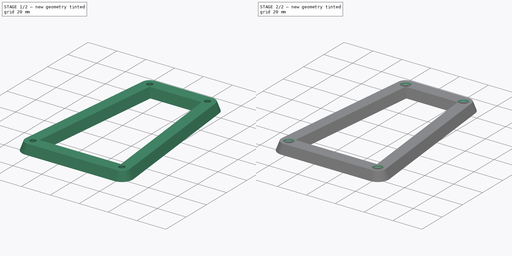
[diagram: build sequence overview — one tinted view per stage of 2, left to right]
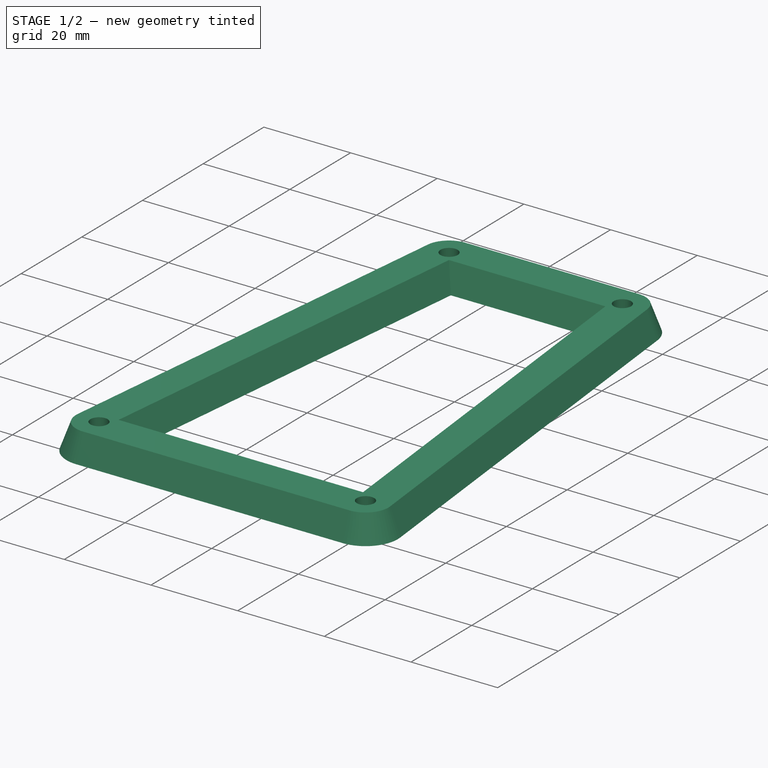
[diagram: stage 1 of 2 — iso view after this stage's code; geometry added in this stage tinted green]
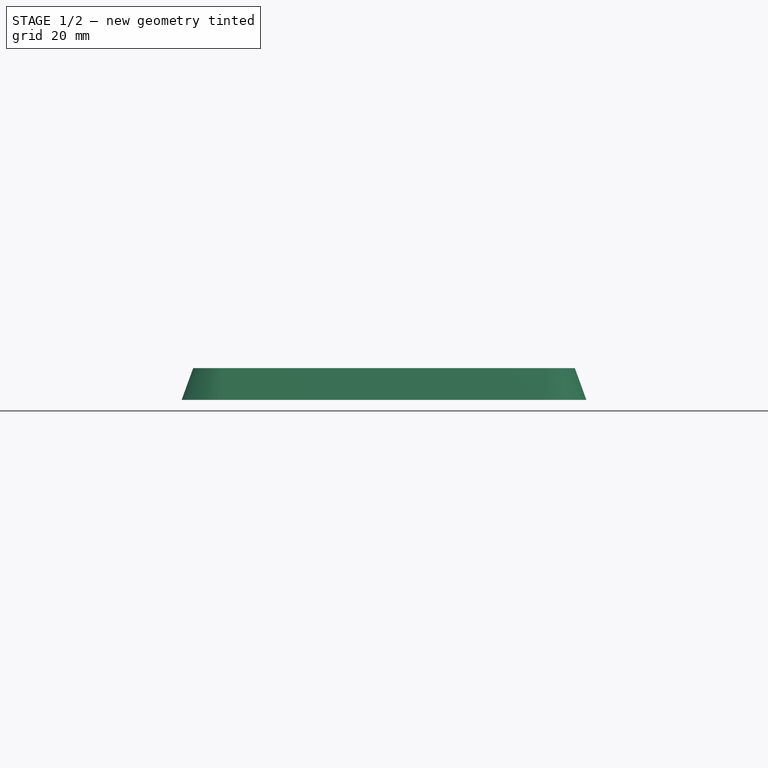
[diagram: stage 1 of 2 — front view after this stage's code; geometry added in this stage tinted green]
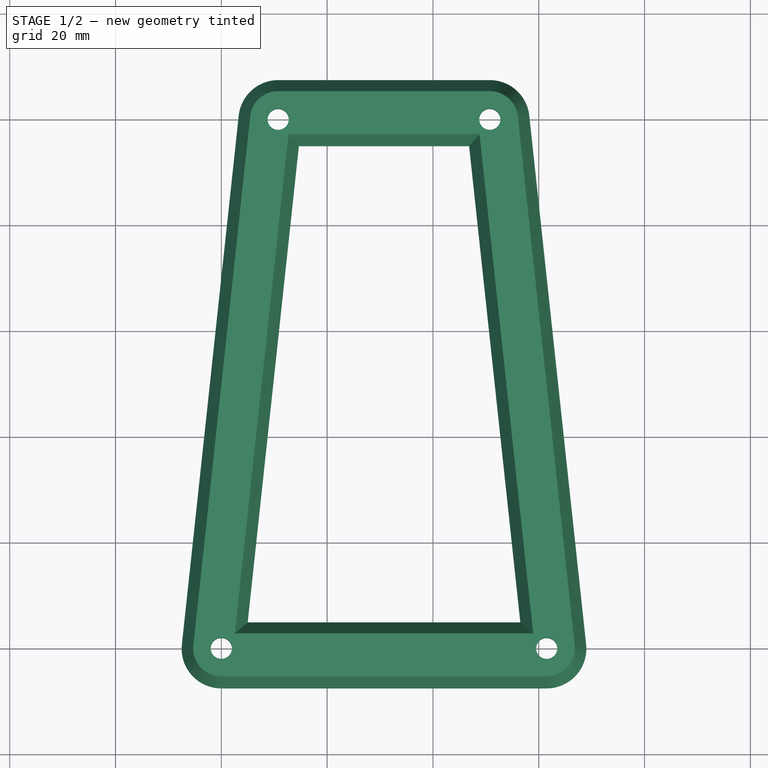
[diagram: stage 1 of 2 — top view after this stage's code; geometry added in this stage tinted green]
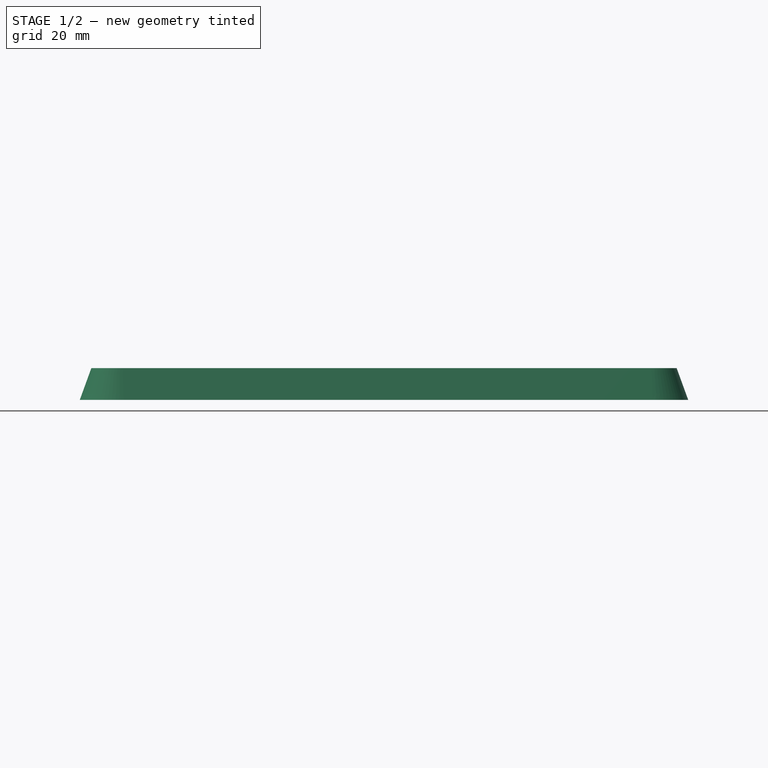
[diagram: stage 1 of 2 — right view after this stage's code; geometry added in this stage tinted green]
FCSTD DOCUMENT  (FreeCAD 0.17R11141 (Git))
Label: LED-remote-bezel-inside
License: All rights reserved
LicenseURL: http://en.wikipedia.org/wiki/All_rights_reserved
objects: Sketcher::SketchObject×1, PartDesign::Pad×1, PartDesign::Draft×1, PartDesign::Chamfer×1, PartDesign::Body×1
note: 6 computed .brp shape members not serialized (recipe doc carries the construction recipe); baked Part::Feature solids carry a one-line shape summary decoded from their .brp

FEATURE [Sketcher::SketchObject] Sketch
  MapMode = 5
  Support = -> [XY_Plane]
  sketch-geometry (22):
    g0: LineSegment [constr] StartX=0 StartY=0 StartZ=0 EndX=61.5 EndY=0 EndZ=0
    g1: LineSegment [constr] StartX=61.5 StartY=0 StartZ=0 EndX=50.75 EndY=100 EndZ=0
    g2: LineSegment [constr] StartX=50.75 StartY=100 StartZ=0 EndX=10.75 EndY=100 EndZ=0
    g3: LineSegment [constr] StartX=10.75 StartY=100 StartZ=0 EndX=0 EndY=0 EndZ=0
    g4: Circle CenterX=10.75 CenterY=100 CenterZ=0 NormalX=0 NormalY=0 NormalZ=1 Radius=2
    g5: Circle CenterX=50.75 CenterY=100 CenterZ=0 NormalX=0 NormalY=0 NormalZ=1 Radius=2
    g6: Circle CenterX=61.5 CenterY=0 CenterZ=0 NormalX=0 NormalY=0 NormalZ=1 Radius=2
    g7: Circle CenterX=0 CenterY=0 CenterZ=0 NormalX=0 NormalY=0 NormalZ=1 Radius=2
    g8: ArcOfCircle CenterX=50.75 CenterY=100 CenterZ=0 NormalX=0 NormalY=0 NormalZ=1 Radius=7.5 StartAngle=0.107088 EndAngle=1.5708
    g9: ArcOfCircle CenterX=61.5 CenterY=0 CenterZ=0 NormalX=0 NormalY=0 NormalZ=1 Radius=7.5 StartAngle=4.71239 EndAngle=6.39027
    g10: ArcOfCircle CenterX=0 CenterY=0 CenterZ=0 NormalX=0 NormalY=0 NormalZ=1 Radius=7.5 StartAngle=3.0345 EndAngle=4.71239
    g11: ArcOfCircle CenterX=10.75 CenterY=100 CenterZ=0 NormalX=0 NormalY=0 NormalZ=1 Radius=7.5 StartAngle=1.5708 EndAngle=3.0345
    g12: LineSegment StartX=3.29296 StartY=100.802 StartZ=0 EndX=-7.45704 EndY=0.801632 EndZ=0
    g13: LineSegment StartX=-5.6888e-08 StartY=-7.5 StartZ=0 EndX=61.5 EndY=-7.5 EndZ=0
    g14: LineSegment StartX=68.957 StartY=0.801632 StartZ=0 EndX=58.207 EndY=100.802 EndZ=0
    g15: LineSegment StartX=50.75 StartY=107.5 StartZ=0 EndX=10.75 EndY=107.5 EndZ=0
    g16: LineSegment StartX=4.98618 StartY=5 StartZ=0 EndX=14.6612 EndY=95 EndZ=0
    g17: LineSegment StartX=14.6612 StartY=95 StartZ=0 EndX=46.8388 EndY=95 EndZ=0
    g18: LineSegment StartX=46.8388 StartY=95 StartZ=0 EndX=56.5138 EndY=5 EndZ=0
    g19: LineSegment StartX=56.5138 StartY=5 StartZ=0 EndX=4.98618 EndY=5 EndZ=0
    g20: LineSegment [constr] StartX=0 StartY=0 StartZ=0 EndX=4.98618 EndY=5 EndZ=0
    g21: LineSegment [constr] StartX=56.5138 StartY=5 StartZ=0 EndX=61.5 EndY=0 EndZ=0
  constraints (60):
    c: Coincident(g0,g1)
    c: Coincident(g1,g2)
    c: Coincident(g2,g3)
    c: Coincident(g3,g0)
    c: Horizontal(g0)
    c: Horizontal(g2)
    c: Coincident(g0,g-1)
    c: DistanceX(g0,g0) = 61.5
    c: Equal(g3,g1)
    c: DistanceX(g2,g2) = 40
    c: DistanceY(g3,g3) = 100
    c: Coincident(g4,g2)
    c: Coincident(g5,g1)
    c: Coincident(g6,g0)
    c: Coincident(g7,g-1)
    c: Equal(g5,g4)
    c: Equal(g4,g7)
    c: Equal(g7,g6)
    c: Radius(g4) = 2
    c: Coincident(g8,g1)
    c: Coincident(g9,g0)
    c: Coincident(g10,g-1)
    c: Coincident(g11,g2)
    c: Coincident(g12,g11)
    c: Coincident(g12,g10)
    c: Coincident(g13,g10)
    c: Coincident(g13,g9)
    c: Horizontal(g13)
    c: Coincident(g14,g9)
    c: Coincident(g14,g8)
    c: Coincident(g15,g8)
    c: Coincident(g15,g11)
    c: Horizontal(g15)
    c: Tangent(g15,g8)
    c: Tangent(g11,g15)
    c: Tangent(g11,g12)
    c: Tangent(g12,g10)
    c: Tangent(g10,g13)
    c: Tangent(g13,g9)
    c: Tangent(g14,g9)
    c: Tangent(g14,g8)
    c: Equal(g9,g10)
    c: Equal(g10,g11)
    c: Equal(g11,g8)
    c: Radius(g9) = 7.5
    c: Coincident(g16,g17)
    c: Horizontal(g17)
    c: Coincident(g17,g18)
    c: Coincident(g18,g19)
    c: Coincident(g19,g16)
    c: Horizontal(g19)
    c: Coincident(g-1,g20)
    c: Coincident(g20,g16)
    c: Coincident(g18,g21)
    c: Coincident(g21,g0)
    c: Equal(g21,g20)
    c: Equal(g18,g16)
    c: DistanceY(g16) = 5
    c: DistanceY(g16,g16) = 90
    c: Parallel(g18,g14)
FEATURE [PartDesign::Pad] Pad
  Length = 6
  Length2 = 100
  Profile = -> Sketch
  Type = 0
FEATURE [PartDesign::Draft] Draft
  Angle = 20
  Base = -> Pad [Face11,Face10,Face9,Face12,Face8]
  BaseFeature = -> Pad
  NeutralPlane = -> Pad [Face17]
  PullDirection = -> Pad [Edge17]
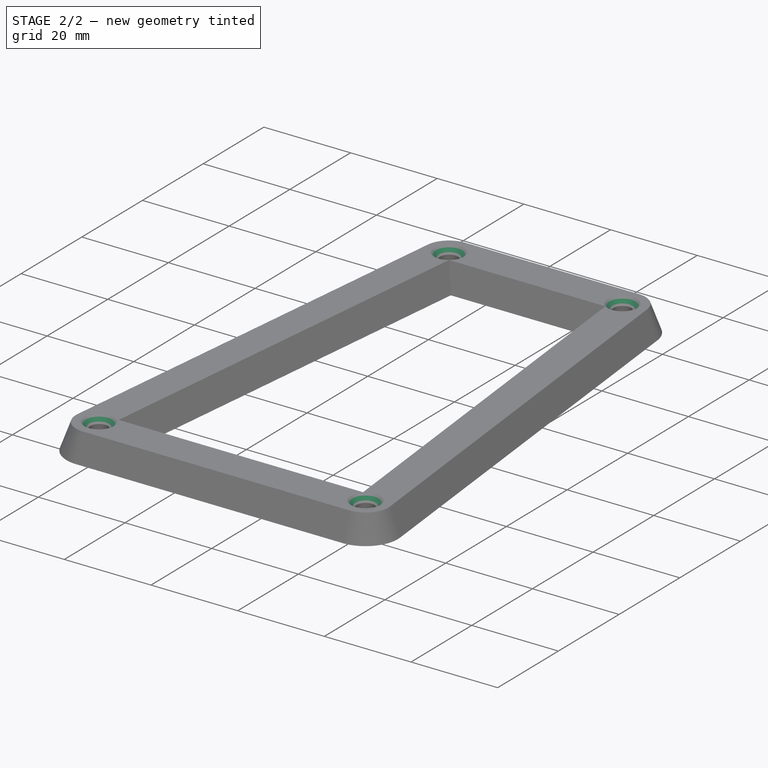
[diagram: stage 2 of 2 — iso view after this stage's code; geometry added in this stage tinted green]
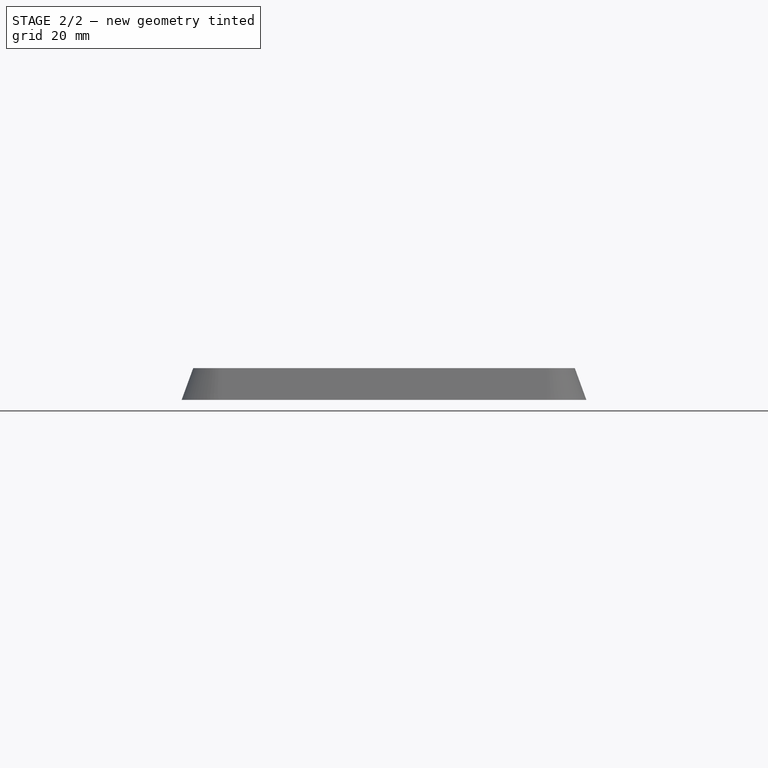
[diagram: stage 2 of 2 — front view after this stage's code; geometry added in this stage tinted green]
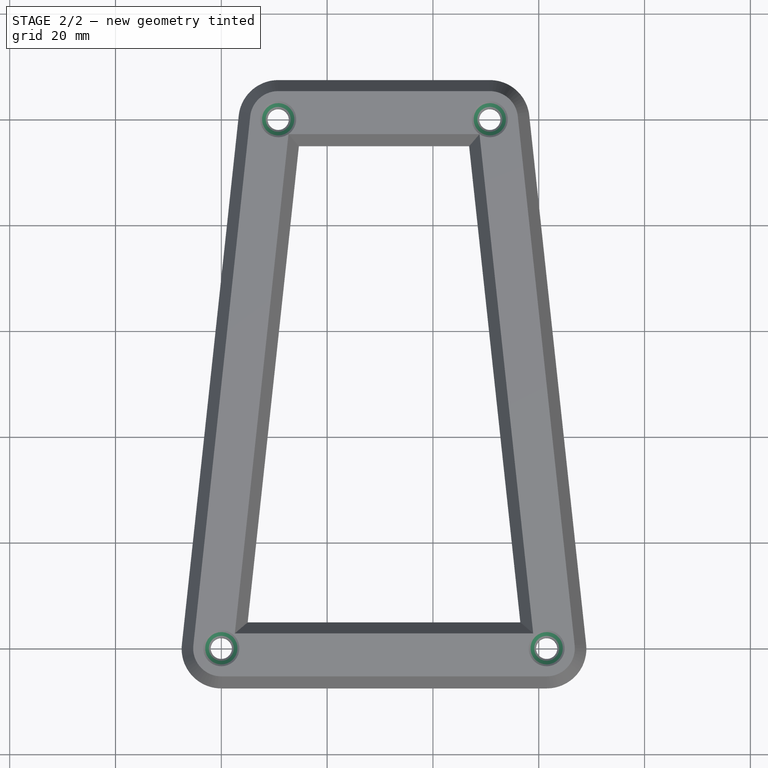
[diagram: stage 2 of 2 — top view after this stage's code; geometry added in this stage tinted green]
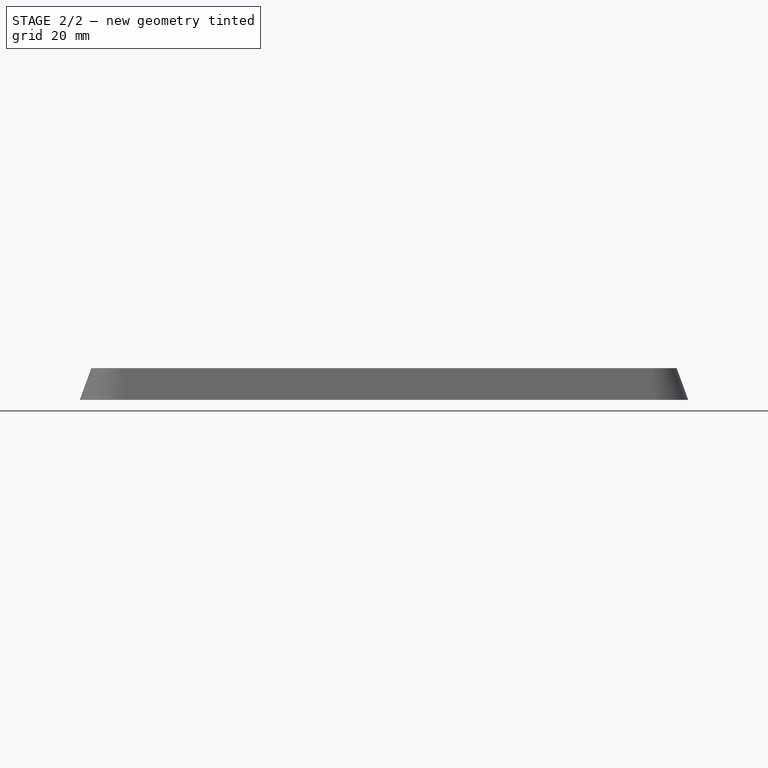
[diagram: stage 2 of 2 — right view after this stage's code; geometry added in this stage tinted green]
FEATURE [PartDesign::Chamfer] Chamfer
  Base = -> Draft [Edge39,Edge42,Edge48,Edge45]
  BaseFeature = -> Draft
  Size = 1.4
FEATURE [PartDesign::Body] Body
  Group = -> [Sketch,Pad,Draft,Chamfer]
  Origin = -> BodyOrigin
  Tip = -> Chamfer
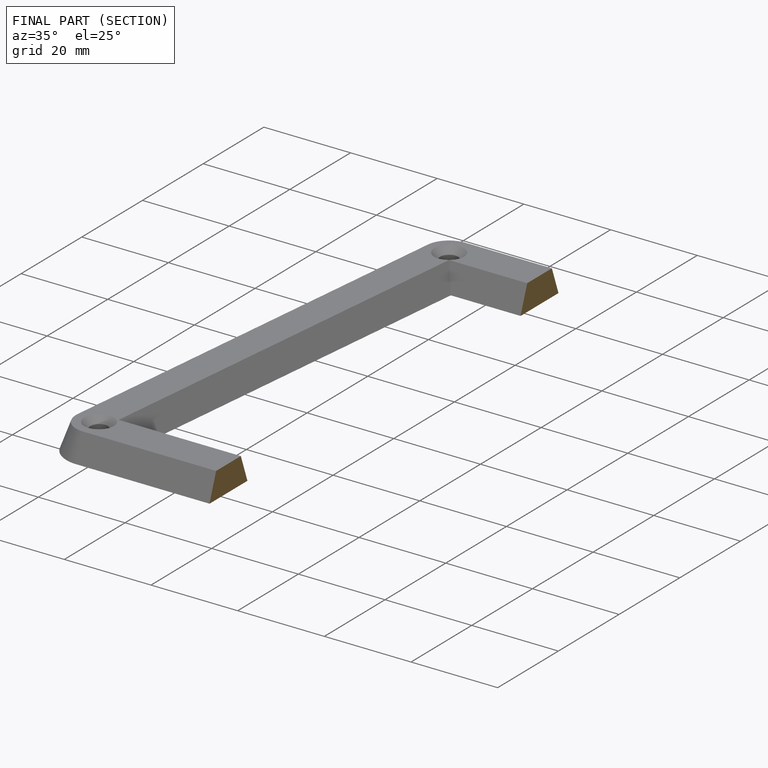
[diagram: finished part — half-section view (interior)]
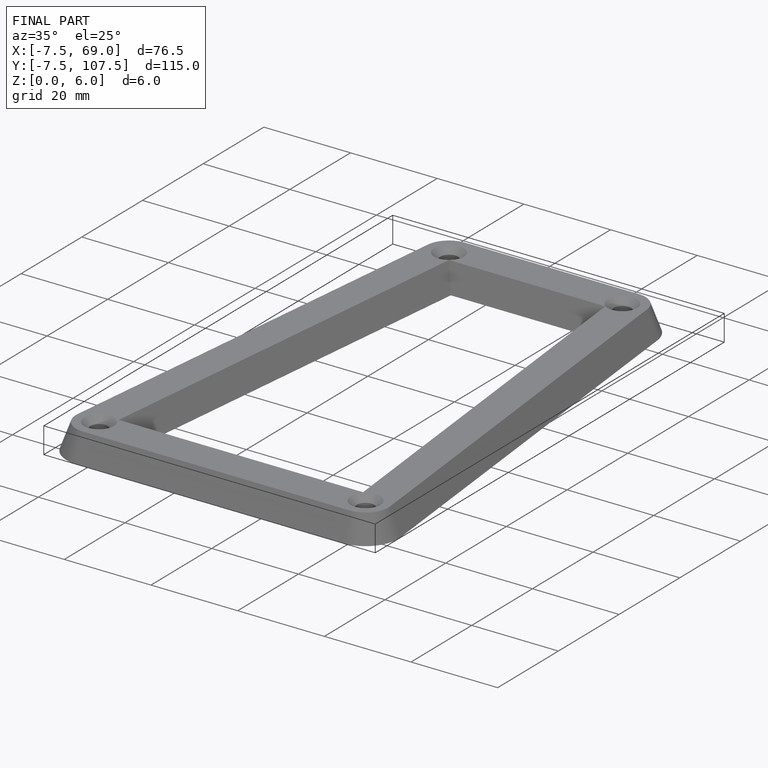
[diagram: finished part — iso view with bounding-box wireframe]
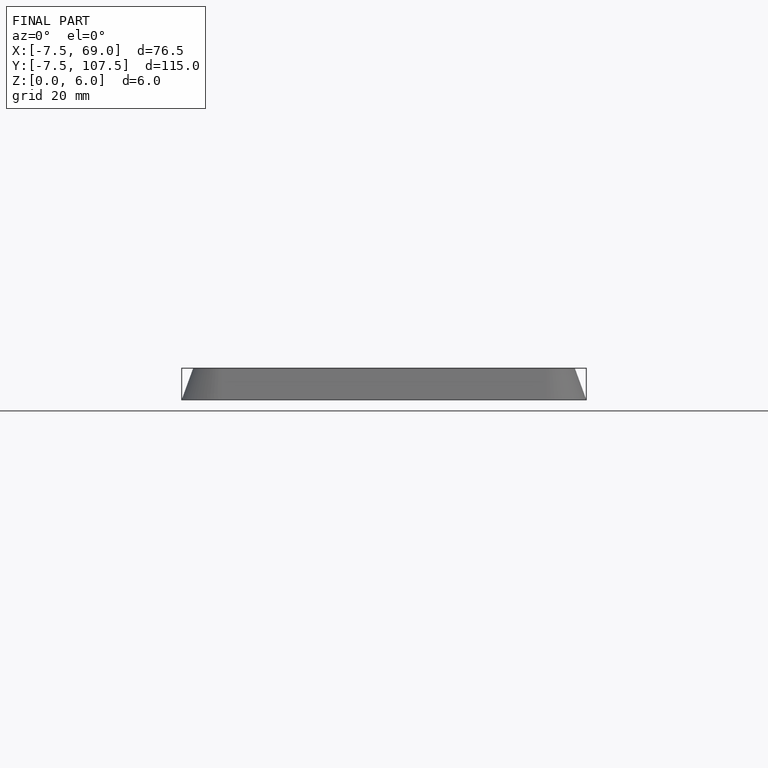
[diagram: finished part — front view with bounding-box wireframe]
